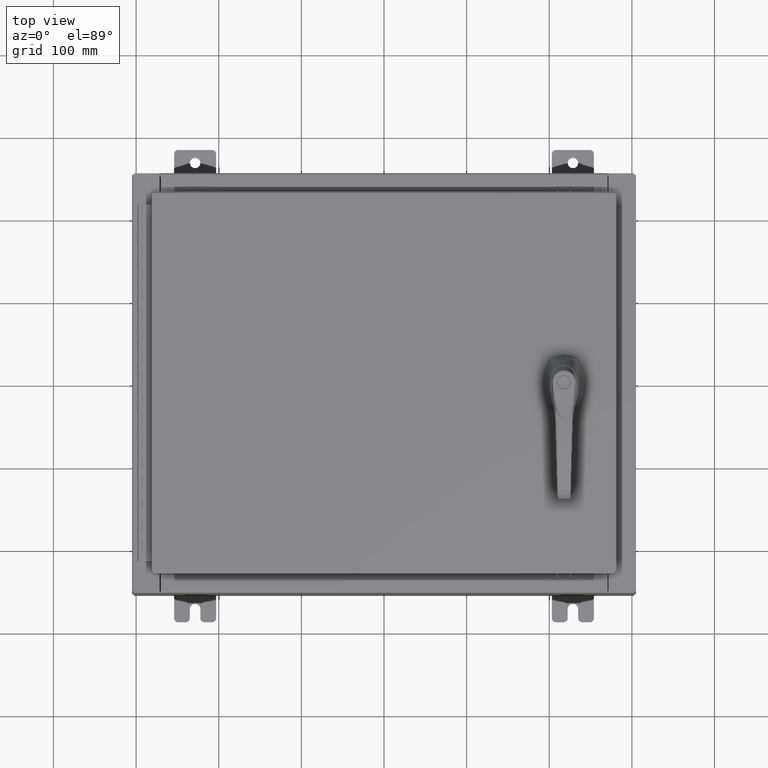
[diagram: clean part render]
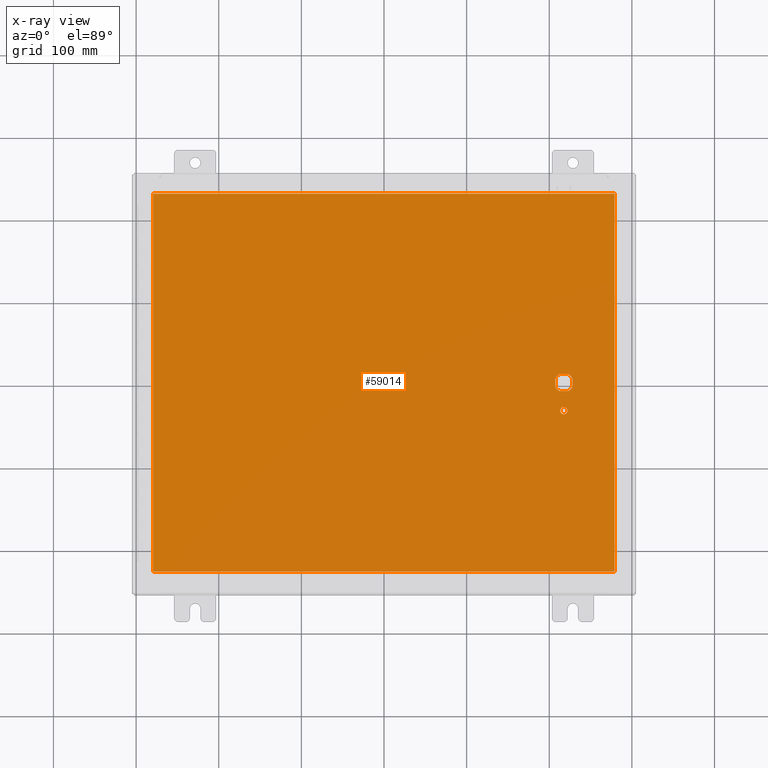
[diagram: x-ray — body ghosted, one internal face saturated and labeled with its STEP entity id]
A machine part, top view, then the same camera in x-ray: the body is ghosted and one INTERNAL B-rep face — a face not visible from any outside direction — is saturated and labeled: STEP entity #59014.
In plain terms, the highlighted planar face has unit normal (0, 0, -1).
Its self-contained STEP definition (entity closure, byte-faithful):
#245 = AXIS2_PLACEMENT_3D ( 'NONE', #44692, #104462, #53320 ) ;
#695 = ORIENTED_EDGE ( 'NONE', *, *, #17095, .F. ) ;
#1155 = LINE ( 'NONE', #34415, #89254 ) ;
#2538 = VECTOR ( 'NONE', #14156, 39.37007874015748100 ) ;
#5948 = CARTESIAN_POINT ( 'NONE',  ( 10.99030000000000000, -9.006299999999999500, -0.07470000000000019700 ) ) ;
#7342 = CARTESIAN_POINT ( 'NONE',  ( -10.99030000000000000, -9.006299999999999500, -0.07470000000000000300 ) ) ;
#7545 = CARTESIAN_POINT ( 'NONE',  ( 8.577999999999999400, 0.0000000000000000000, -0.07470000000000003000 ) ) ;
#7582 = VERTEX_POINT ( 'NONE', #40838 ) ;
#11849 = DIRECTION ( 'NONE',  ( -0.0000000000000000000, -0.0000000000000000000, 1.000000000000000000 ) ) ;
#13327 = VECTOR ( 'NONE', #96305, 39.37007874015748100 ) ;
#14156 = DIRECTION ( 'NONE',  ( 0.0000000000000000000, 1.000000000000000000, 0.0000000000000000000 ) ) ;
#15693 = EDGE_LOOP ( 'NONE', ( #109777, #80158, #70312, #47182, #88665, #84282, #42450, #85584 ) ) ;
#16116 = DIRECTION ( 'NONE',  ( -0.0000000000000000000, -0.0000000000000000000, 1.000000000000000000 ) ) ;
#16118 = DIRECTION ( 'NONE',  ( -1.000000000000000000, 1.776356839400251300E-015, 0.0000000000000000000 ) ) ;
#16498 = DIRECTION ( 'NONE',  ( 2.728745808672812900E-015, -1.000000000000000000, 0.0000000000000000000 ) ) ;
#16734 = LINE ( 'NONE', #93012, #76798 ) ;
#17095 = EDGE_CURVE ( 'NONE', #67872, #70698, #34363, .T. ) ;
#18968 = AXIS2_PLACEMENT_3D ( 'NONE', #40046, #99814, #48676 ) ;
#19624 = AXIS2_PLACEMENT_3D ( 'NONE', #67223, #16116, #75799 ) ;
#19990 = EDGE_CURVE ( 'NONE', #64230, #99582, #87601, .T. ) ;
#20127 = CARTESIAN_POINT ( 'NONE',  ( -10.99030000000000000, -9.006299999999999500, -0.07470000000000021100 ) ) ;
#22116 = VERTEX_POINT ( 'NONE', #42658 ) ;
#22776 = EDGE_CURVE ( 'NONE', #22116, #92087, #67006, .T. ) ;
#26193 = CARTESIAN_POINT ( 'NONE',  ( 8.980999999999925300, 0.2002273707563080300, -0.07470000000000003000 ) ) ;
#26220 = DIRECTION ( 'NONE',  ( 0.0000000000000000000, 0.0000000000000000000, -1.000000000000000000 ) ) ;
#27671 = EDGE_LOOP ( 'NONE', ( #37555, #47632 ) ) ;
#28606 = CARTESIAN_POINT ( 'NONE',  ( 8.175000000000073500, -0.2002273707563079800, -0.07470000000000003000 ) ) ;
#29392 = CARTESIAN_POINT ( 'NONE',  ( 8.577999999999999400, 0.0000000000000000000, -0.07470000000000003000 ) ) ;
#32288 = EDGE_CURVE ( 'NONE', #46400, #60423, #16734, .T. ) ;
#34363 = LINE ( 'NONE', #20127, #77099 ) ;
#34415 = CARTESIAN_POINT ( 'NONE',  ( 0.0000000000000000000, 0.4029999999999252000, -0.07470000000000003000 ) ) ;
#35861 = CARTESIAN_POINT ( 'NONE',  ( 8.406499999999999400, -1.338000000000000100, -0.07470000000000003000 ) ) ;
#36411 = CIRCLE ( 'NONE', #50714, 0.4499999999999156900 ) ;
#37555 = ORIENTED_EDGE ( 'NONE', *, *, #101651, .T. ) ;
#37956 = DIRECTION ( 'NONE',  ( -1.000000000000000000, 0.0000000000000000000, 0.0000000000000000000 ) ) ;
#40046 = CARTESIAN_POINT ( 'NONE',  ( 8.577999999999999400, 0.0000000000000000000, -0.07470000000000003000 ) ) ;
#40838 = CARTESIAN_POINT ( 'NONE',  ( 8.377772629243690300, 0.4029999999999252000, -0.07470000000000003000 ) ) ;
#41592 = VECTOR ( 'NONE', #92934, 39.37007874015748100 ) ;
#42450 = ORIENTED_EDGE ( 'NONE', *, *, #71838, .T. ) ;
#42658 = CARTESIAN_POINT ( 'NONE',  ( 8.377772629243690300, -0.4029999999999250300, -0.07470000000000003000 ) ) ;
#42974 = CARTESIAN_POINT ( 'NONE',  ( 0.0000000000000000000, 0.0000000000000000000, -0.07470000000000000300 ) ) ;
#43922 = EDGE_LOOP ( 'NONE', ( #94905, #695, #105534, #50460 ) ) ;
#44692 = CARTESIAN_POINT ( 'NONE',  ( 8.577999999999999400, 0.0000000000000000000, -0.07470000000000003000 ) ) ;
#45855 = CARTESIAN_POINT ( 'NONE',  ( 10.99030000000000000, 9.006299999999999500, -0.07470000000000021100 ) ) ;
#46385 = CIRCLE ( 'NONE', #48524, 0.1715000000000011500 ) ;
#46400 = VERTEX_POINT ( 'NONE', #26193 ) ;
#46654 = EDGE_CURVE ( 'NONE', #83834, #82282, #88327, .T. ) ;
#47182 = ORIENTED_EDGE ( 'NONE', *, *, #108656, .T. ) ;
#47632 = ORIENTED_EDGE ( 'NONE', *, *, #109504, .T. ) ;
#47886 = LINE ( 'NONE', #5948, #2538 ) ;
#48099 = EDGE_CURVE ( 'NONE', #7582, #64230, #86839, .T. ) ;
#48524 = AXIS2_PLACEMENT_3D ( 'NONE', #62984, #11849, #71545 ) ;
#48676 = DIRECTION ( 'NONE',  ( -1.000000000000000000, 8.881784197001256300E-016, 0.0000000000000000000 ) ) ;
#49145 = DIRECTION ( 'NONE',  ( 0.0000000000000000000, -1.000000000000000000, 0.0000000000000000000 ) ) ;
#50460 = ORIENTED_EDGE ( 'NONE', *, *, #46654, .F. ) ;
#50714 = AXIS2_PLACEMENT_3D ( 'NONE', #29392, #89117, #37956 ) ;
#52410 = FACE_BOUND ( 'NONE', #15693, .T. ) ;
#53320 = DIRECTION ( 'NONE',  ( -1.000000000000000000, 0.0000000000000000000, 0.0000000000000000000 ) ) ;
#53785 = CARTESIAN_POINT ( 'NONE',  ( 8.778227370756310300, 0.4029999999999250300, -0.07470000000000003000 ) ) ;
#54500 = DIRECTION ( 'NONE',  ( 1.000000000000000000, -0.0000000000000000000, -0.0000000000000000000 ) ) ;
#56211 = CARTESIAN_POINT ( 'NONE',  ( 8.778227370756310300, -0.4029999999999252000, -0.07470000000000003000 ) ) ;
#56751 = CIRCLE ( 'NONE', #19624, 0.1715000000000011500 ) ;
#58361 = EDGE_CURVE ( 'NONE', #46400, #73661, #36411, .T. ) ;
#59014 = ADVANCED_FACE ( 'NONE', ( #91159, #75079, #52410 ), #77322, .T. ) ;
#59400 = CARTESIAN_POINT ( 'NONE',  ( 0.0000000000000000000, -0.4029999999999252000, -0.07470000000000003000 ) ) ;
#60221 = DIRECTION ( 'NONE',  ( -1.000000000000000000, 0.0000000000000000000, 0.0000000000000000000 ) ) ;
#60423 = VERTEX_POINT ( 'NONE', #90091 ) ;
#60931 = CARTESIAN_POINT ( 'NONE',  ( 8.749500000000001200, -1.338000000000000100, -0.07470000000000003000 ) ) ;
#62275 = VECTOR ( 'NONE', #49145, 39.37007874015748100 ) ;
#62975 = VECTOR ( 'NONE', #88429, 39.37007874015748100 ) ;
#62984 = CARTESIAN_POINT ( 'NONE',  ( 8.577999999999999400, -1.338000000000000100, -0.07470000000000003000 ) ) ;
#64230 = VERTEX_POINT ( 'NONE', #86506 ) ;
#65754 = AXIS2_PLACEMENT_3D ( 'NONE', #42974, #26220, #85899 ) ;
#67006 = LINE ( 'NONE', #59400, #41592 ) ;
#67223 = CARTESIAN_POINT ( 'NONE',  ( 8.577999999999999400, -1.338000000000000100, -0.07470000000000003000 ) ) ;
#67224 = DIRECTION ( 'NONE',  ( -0.0000000000000000000, -0.0000000000000000000, 1.000000000000000000 ) ) ;
#67872 = VERTEX_POINT ( 'NONE', #7342 ) ;
#69230 = CARTESIAN_POINT ( 'NONE',  ( -10.99030000000000000, 9.006299999999997800, -0.07470000000000000300 ) ) ;
#70312 = ORIENTED_EDGE ( 'NONE', *, *, #58361, .T. ) ;
#70698 = VERTEX_POINT ( 'NONE', #106811 ) ;
#71545 = DIRECTION ( 'NONE',  ( -1.000000000000000000, 0.0000000000000000000, 0.0000000000000000000 ) ) ;
#71838 = EDGE_CURVE ( 'NONE', #99582, #22116, #104392, .T. ) ;
#73560 = AXIS2_PLACEMENT_3D ( 'NONE', #7545, #67224, #16118 ) ;
#73661 = VERTEX_POINT ( 'NONE', #53785 ) ;
#74859 = CIRCLE ( 'NONE', #73560, 0.4499999999999156900 ) ;
#75079 = FACE_OUTER_BOUND ( 'NONE', #43922, .T. ) ;
#75799 = DIRECTION ( 'NONE',  ( -1.000000000000000000, 0.0000000000000000000, 0.0000000000000000000 ) ) ;
#76798 = VECTOR ( 'NONE', #16498, 39.37007874015748100 ) ;
#77099 = VECTOR ( 'NONE', #54500, 39.37007874015748100 ) ;
#77322 = PLANE ( 'NONE',  #65754 ) ;
#79112 = CARTESIAN_POINT ( 'NONE',  ( -10.99030000000000000, 9.006299999999999500, -0.07470000000000019700 ) ) ;
#80158 = ORIENTED_EDGE ( 'NONE', *, *, #32288, .F. ) ;
#82282 = VERTEX_POINT ( 'NONE', #69230 ) ;
#83245 = EDGE_CURVE ( 'NONE', #70698, #83834, #47886, .T. ) ;
#83834 = VERTEX_POINT ( 'NONE', #93484 ) ;
#84282 = ORIENTED_EDGE ( 'NONE', *, *, #19990, .T. ) ;
#85584 = ORIENTED_EDGE ( 'NONE', *, *, #22776, .T. ) ;
#85899 = DIRECTION ( 'NONE',  ( -1.000000000000000000, 0.0000000000000000000, -0.0000000000000000000 ) ) ;
#86506 = CARTESIAN_POINT ( 'NONE',  ( 8.175000000000073500, 0.2002273707563080300, -0.07470000000000003000 ) ) ;
#86839 = CIRCLE ( 'NONE', #245, 0.4499999999999156900 ) ;
#87601 = LINE ( 'NONE', #100286, #62275 ) ;
#88327 = LINE ( 'NONE', #45855, #62975 ) ;
#88429 = DIRECTION ( 'NONE',  ( -1.000000000000000000, -0.0000000000000000000, -0.0000000000000000000 ) ) ;
#88665 = ORIENTED_EDGE ( 'NONE', *, *, #48099, .T. ) ;
#89117 = DIRECTION ( 'NONE',  ( -0.0000000000000000000, -0.0000000000000000000, 1.000000000000000000 ) ) ;
#89254 = VECTOR ( 'NONE', #60221, 39.37007874015748100 ) ;
#90091 = CARTESIAN_POINT ( 'NONE',  ( 8.980999999999925300, -0.2002273707563075900, -0.07470000000000003000 ) ) ;
#91159 = FACE_BOUND ( 'NONE', #27671, .T. ) ;
#92087 = VERTEX_POINT ( 'NONE', #56211 ) ;
#92835 = EDGE_CURVE ( 'NONE', #92087, #60423, #74859, .T. ) ;
#92934 = DIRECTION ( 'NONE',  ( 1.000000000000000000, 0.0000000000000000000, 0.0000000000000000000 ) ) ;
#93012 = CARTESIAN_POINT ( 'NONE',  ( 8.980999999999925300, 2.450686610769032800E-014, -0.07470000000000003000 ) ) ;
#93056 = VERTEX_POINT ( 'NONE', #60931 ) ;
#93484 = CARTESIAN_POINT ( 'NONE',  ( 10.99030000000000000, 9.006299999999999500, -0.07470000000000000300 ) ) ;
#94905 = ORIENTED_EDGE ( 'NONE', *, *, #83245, .F. ) ;
#96305 = DIRECTION ( 'NONE',  ( 0.0000000000000000000, -1.000000000000000000, 0.0000000000000000000 ) ) ;
#99582 = VERTEX_POINT ( 'NONE', #28606 ) ;
#99814 = DIRECTION ( 'NONE',  ( -0.0000000000000000000, -0.0000000000000000000, 1.000000000000000000 ) ) ;
#100286 = CARTESIAN_POINT ( 'NONE',  ( 8.175000000000073500, 0.0000000000000000000, -0.07470000000000003000 ) ) ;
#101651 = EDGE_CURVE ( 'NONE', #93056, #101700, #56751, .T. ) ;
#101700 = VERTEX_POINT ( 'NONE', #35861 ) ;
#104186 = LINE ( 'NONE', #79112, #13327 ) ;
#104392 = CIRCLE ( 'NONE', #18968, 0.4499999999999156900 ) ;
#104462 = DIRECTION ( 'NONE',  ( -0.0000000000000000000, -0.0000000000000000000, 1.000000000000000000 ) ) ;
#105534 = ORIENTED_EDGE ( 'NONE', *, *, #107211, .F. ) ;
#106811 = CARTESIAN_POINT ( 'NONE',  ( 10.99030000000000000, -9.006299999999999500, -0.07470000000000000300 ) ) ;
#107211 = EDGE_CURVE ( 'NONE', #82282, #67872, #104186, .T. ) ;
#108656 = EDGE_CURVE ( 'NONE', #73661, #7582, #1155, .T. ) ;
#109504 = EDGE_CURVE ( 'NONE', #101700, #93056, #46385, .T. ) ;
#109777 = ORIENTED_EDGE ( 'NONE', *, *, #92835, .T. ) ;